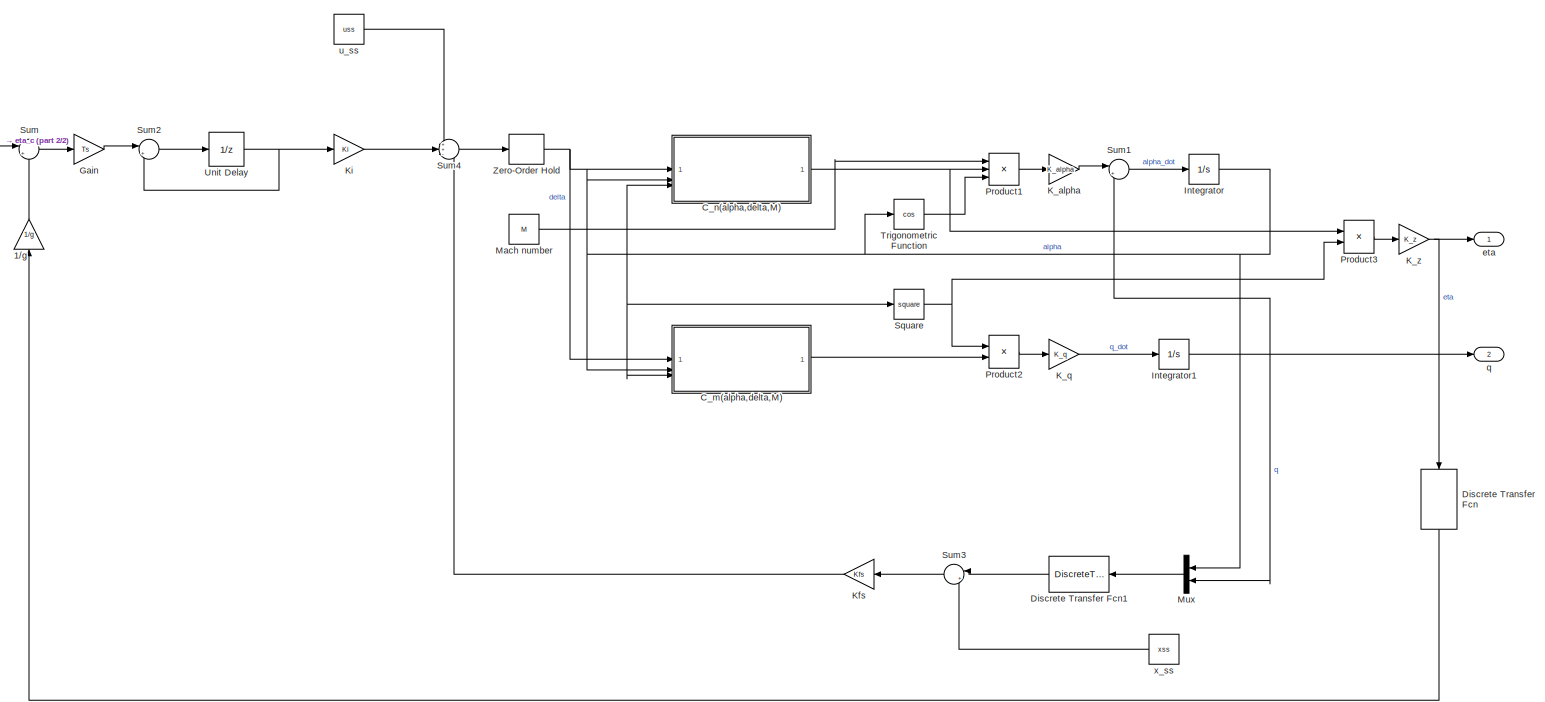
[diagram: root canvas - part 1/2, most of the canvas]
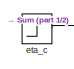
[diagram: root canvas - part 2/2, top left region]
MODEL slx_7d6e27bf7fac
KIND model
CONFIG AbsTol = auto
CONFIG EnableMultiTasking = off
CONFIG FixedStep = STEP_SIZE
CONFIG MaxStep = auto
CONFIG MinStep = auto
CONFIG RelTol = 1e-3
CONFIG SampleTimeConstraint = Unconstrained
CONFIG SolverName = ode4
CONFIG StartTime = 0.0
CONFIG StopTime = SIM_TIME
BLOCK [Gain] 1//g
  Gain = 1/g
  NameLocation = right
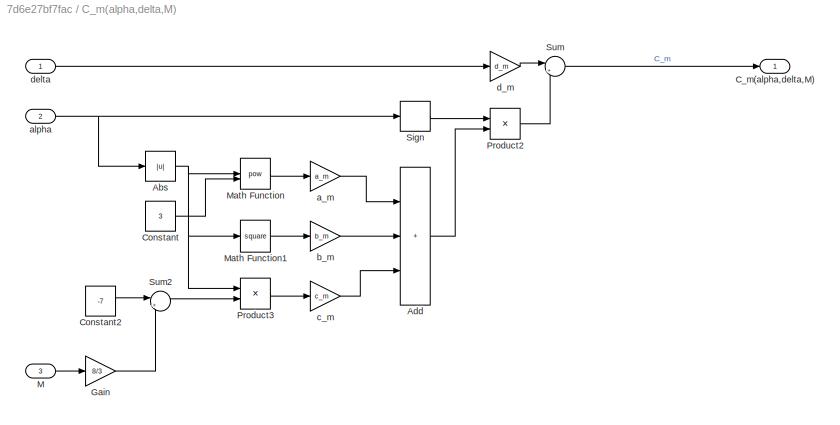
BLOCK [SubSystem] C_m(alpha,delta,M)
BLOCK [Abs] C_m(alpha,delta,M)/Abs
  SaturateOnIntegerOverflow = off
BLOCK [Sum] C_m(alpha,delta,M)/Add
  IconShape = rectangular
  Inputs = +++
BLOCK [Outport] C_m(alpha,delta,M)/C_m(alpha,delta,M)
BLOCK [Constant] C_m(alpha,delta,M)/Constant
  Value = 3
BLOCK [Constant] C_m(alpha,delta,M)/Constant2
  Value = -7
BLOCK [Gain] C_m(alpha,delta,M)/Gain
  Gain = 8/3
BLOCK [Inport] C_m(alpha,delta,M)/M
  Port = 3
BLOCK [Math] C_m(alpha,delta,M)/Math Function
  Operator = pow
BLOCK [Math] C_m(alpha,delta,M)/Math Function1
  Operator = square
BLOCK [Product] C_m(alpha,delta,M)/Product2
BLOCK [Product] C_m(alpha,delta,M)/Product3
BLOCK [Signum] C_m(alpha,delta,M)/Sign
BLOCK [Sum] C_m(alpha,delta,M)/Sum
  Inputs = |++
BLOCK [Sum] C_m(alpha,delta,M)/Sum2
  Inputs = |++
BLOCK [Gain] C_m(alpha,delta,M)/a_m
  Gain = a_m
BLOCK [Inport] C_m(alpha,delta,M)/alpha
  Port = 2
BLOCK [Gain] C_m(alpha,delta,M)/b_m
  Gain = b_m
BLOCK [Gain] C_m(alpha,delta,M)/c_m
  Gain = c_m
BLOCK [Gain] C_m(alpha,delta,M)/d_m
  Gain = d_m
BLOCK [Inport] C_m(alpha,delta,M)/delta
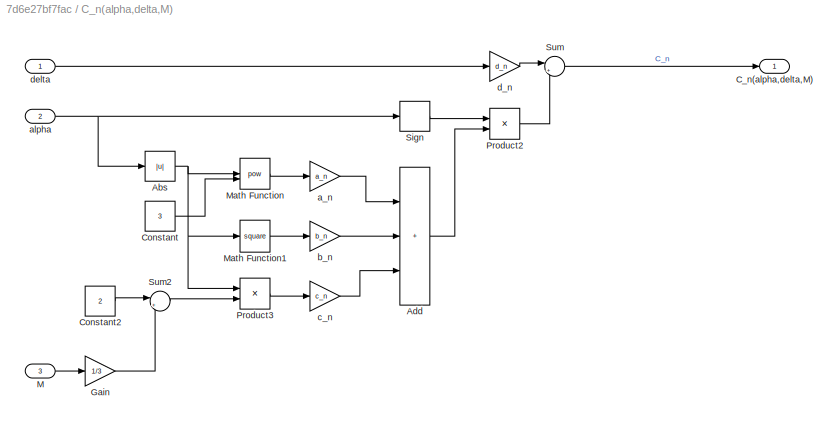
BLOCK [SubSystem] C_n(alpha,delta,M)
BLOCK [Abs] C_n(alpha,delta,M)/Abs
  SaturateOnIntegerOverflow = off
BLOCK [Sum] C_n(alpha,delta,M)/Add
  IconShape = rectangular
  Inputs = +++
BLOCK [Outport] C_n(alpha,delta,M)/C_n(alpha,delta,M)
BLOCK [Constant] C_n(alpha,delta,M)/Constant
  Value = 3
BLOCK [Constant] C_n(alpha,delta,M)/Constant2
  Value = 2
BLOCK [Gain] C_n(alpha,delta,M)/Gain
  Gain = 1/3
BLOCK [Inport] C_n(alpha,delta,M)/M
  Port = 3
BLOCK [Math] C_n(alpha,delta,M)/Math Function
  Operator = pow
BLOCK [Math] C_n(alpha,delta,M)/Math Function1
  Operator = square
BLOCK [Product] C_n(alpha,delta,M)/Product2
BLOCK [Product] C_n(alpha,delta,M)/Product3
BLOCK [Signum] C_n(alpha,delta,M)/Sign
BLOCK [Sum] C_n(alpha,delta,M)/Sum
  Inputs = |++
BLOCK [Sum] C_n(alpha,delta,M)/Sum2
  Inputs = |+-
BLOCK [Gain] C_n(alpha,delta,M)/a_n
  Gain = a_n
BLOCK [Inport] C_n(alpha,delta,M)/alpha
  Port = 2
BLOCK [Gain] C_n(alpha,delta,M)/b_n
  Gain = b_n
BLOCK [Gain] C_n(alpha,delta,M)/c_n
  Gain = c_n
BLOCK [Gain] C_n(alpha,delta,M)/d_n
  Gain = d_n
BLOCK [Inport] C_n(alpha,delta,M)/delta
BLOCK [DiscreteTransferFcn] Discrete Transfer Fcn
  Denominator = [1]
  InputPortMap = u0
  NameLocation = left
  SampleTime = Ts
BLOCK [DiscreteTransferFcn] Discrete Transfer Fcn1
  Denominator = [1]
  InputPortMap = u0
  NameLocation = top
  SampleTime = Ts
BLOCK [Gain] Gain
  Gain = Ts
BLOCK [Integrator] Integrator
  InitialCondition = x0(1)
  Priority = 1
BLOCK [Integrator] Integrator1
  InitialCondition = x0(2)
  Priority = 2
BLOCK [Gain] K_alpha
  Gain = K_alpha
BLOCK [Gain] K_q
  Gain = K_q
BLOCK [Gain] K_z
  Gain = K_z
BLOCK [Gain] Kfs
  Gain = Kfs
  Multiplication = Matrix(K*u) (u vector)
BLOCK [Gain] Ki
  Gain = Ki
BLOCK [Constant] Mach number
  Value = M
BLOCK [Mux] Mux
  DisplayOption = bar
  Inputs = 2
BLOCK [Product] Product1
  Inputs = 3
BLOCK [Product] Product2
BLOCK [Product] Product3
BLOCK [Math] Square
  Operator = square
BLOCK [Sum] Sum
  Inputs = |+-
BLOCK [Sum] Sum1
  Inputs = |++
BLOCK [Sum] Sum2
  Inputs = |++
BLOCK [Sum] Sum3
  Inputs = |+-
BLOCK [Sum] Sum4
  Inputs = ++-
BLOCK [Trigonometry] Trigonometric Function
  Operator = cos
BLOCK [UnitDelay] Unit Delay
  HasFrameUpgradeWarning = on
  SampleTime = Ts
BLOCK [ZeroOrderHold] Zero-Order Hold
  SampleTime = Ts
BLOCK [Outport] eta
BLOCK [Step] eta_c
  After = yss(1)/g + StepAmplitude
  Before = yss(1)/g
  SampleTime = Ts
  Time = 10
BLOCK [Outport] q
  Port = 2
BLOCK [Constant] u_ss
  Value = uss
BLOCK [Constant] x_ss
  Value = xss
LINE 1//g:1 -> Sum:2
NET C_m(alpha,delta,M)/Abs:1 -> C_m(alpha,delta,M)/Math Function1:1, C_m(alpha,delta,M)/Math Function:1, C_m(alpha,delta,M)/Product3:1
LINE C_m(alpha,delta,M)/Add:1 -> C_m(alpha,delta,M)/Product2:2
LINE C_m(alpha,delta,M)/Constant2:1 -> C_m(alpha,delta,M)/Sum2:1
LINE C_m(alpha,delta,M)/Constant:1 -> C_m(alpha,delta,M)/Math Function:2
LINE C_m(alpha,delta,M)/Gain:1 -> C_m(alpha,delta,M)/Sum2:2
LINE C_m(alpha,delta,M)/M:1 -> C_m(alpha,delta,M)/Gain:1
LINE C_m(alpha,delta,M)/Math Function1:1 -> C_m(alpha,delta,M)/b_m:1
LINE C_m(alpha,delta,M)/Math Function:1 -> C_m(alpha,delta,M)/a_m:1
LINE C_m(alpha,delta,M)/Product2:1 -> C_m(alpha,delta,M)/Sum:2
LINE C_m(alpha,delta,M)/Product3:1 -> C_m(alpha,delta,M)/c_m:1
LINE C_m(alpha,delta,M)/Sign:1 -> C_m(alpha,delta,M)/Product2:1
LINE C_m(alpha,delta,M)/Sum2:1 -> C_m(alpha,delta,M)/Product3:2
LINE C_m(alpha,delta,M)/Sum:1 -> C_m(alpha,delta,M)/C_m(alpha,delta,M):1
LINE C_m(alpha,delta,M)/a_m:1 -> C_m(alpha,delta,M)/Add:1
NET C_m(alpha,delta,M)/alpha:1 -> C_m(alpha,delta,M)/Abs:1, C_m(alpha,delta,M)/Sign:1
LINE C_m(alpha,delta,M)/b_m:1 -> C_m(alpha,delta,M)/Add:2
LINE C_m(alpha,delta,M)/c_m:1 -> C_m(alpha,delta,M)/Add:3
LINE C_m(alpha,delta,M)/d_m:1 -> C_m(alpha,delta,M)/Sum:1
LINE C_m(alpha,delta,M)/delta:1 -> C_m(alpha,delta,M)/d_m:1
LINE C_m(alpha,delta,M):1 -> Product2:2
NET C_n(alpha,delta,M)/Abs:1 -> C_n(alpha,delta,M)/Math Function1:1, C_n(alpha,delta,M)/Math Function:1, C_n(alpha,delta,M)/Product3:1
LINE C_n(alpha,delta,M)/Add:1 -> C_n(alpha,delta,M)/Product2:2
LINE C_n(alpha,delta,M)/Constant2:1 -> C_n(alpha,delta,M)/Sum2:1
LINE C_n(alpha,delta,M)/Constant:1 -> C_n(alpha,delta,M)/Math Function:2
LINE C_n(alpha,delta,M)/Gain:1 -> C_n(alpha,delta,M)/Sum2:2
LINE C_n(alpha,delta,M)/M:1 -> C_n(alpha,delta,M)/Gain:1
LINE C_n(alpha,delta,M)/Math Function1:1 -> C_n(alpha,delta,M)/b_n:1
LINE C_n(alpha,delta,M)/Math Function:1 -> C_n(alpha,delta,M)/a_n:1
LINE C_n(alpha,delta,M)/Product2:1 -> C_n(alpha,delta,M)/Sum:2
LINE C_n(alpha,delta,M)/Product3:1 -> C_n(alpha,delta,M)/c_n:1
LINE C_n(alpha,delta,M)/Sign:1 -> C_n(alpha,delta,M)/Product2:1
LINE C_n(alpha,delta,M)/Sum2:1 -> C_n(alpha,delta,M)/Product3:2
LINE C_n(alpha,delta,M)/Sum:1 -> C_n(alpha,delta,M)/C_n(alpha,delta,M):1
LINE C_n(alpha,delta,M)/a_n:1 -> C_n(alpha,delta,M)/Add:1
NET C_n(alpha,delta,M)/alpha:1 -> C_n(alpha,delta,M)/Abs:1, C_n(alpha,delta,M)/Sign:1
LINE C_n(alpha,delta,M)/b_n:1 -> C_n(alpha,delta,M)/Add:2
LINE C_n(alpha,delta,M)/c_n:1 -> C_n(alpha,delta,M)/Add:3
LINE C_n(alpha,delta,M)/d_n:1 -> C_n(alpha,delta,M)/Sum:1
LINE C_n(alpha,delta,M)/delta:1 -> C_n(alpha,delta,M)/d_n:1
NET C_n(alpha,delta,M):1 -> Product1:2, Product3:1
LINE Discrete Transfer Fcn1:1 -> Sum3:1
LINE Discrete Transfer Fcn:1 -> 1//g:1
LINE Gain:1 -> Sum2:1
NET Integrator1:1 -> Mux:2, Sum1:2, q:1
NET Integrator:1 -> C_m(alpha,delta,M):2, C_n(alpha,delta,M):2, Mux:1, Trigonometric Function:1
LINE K_alpha:1 -> Sum1:1
LINE K_q:1 -> Integrator1:1
NET K_z:1 -> Discrete Transfer Fcn:1, eta:1
LINE Kfs:1 -> Sum4:3
LINE Ki:1 -> Sum4:2
NET Mach number:1 -> C_m(alpha,delta,M):3, C_n(alpha,delta,M):3, Product1:1, Square:1
LINE Mux:1 -> Discrete Transfer Fcn1:1
LINE Product1:1 -> K_alpha:1
LINE Product2:1 -> K_q:1
LINE Product3:1 -> K_z:1
NET Square:1 -> Product2:1, Product3:2
LINE Sum1:1 -> Integrator:1
LINE Sum2:1 -> Unit Delay:1
LINE Sum3:1 -> Kfs:1
LINE Sum4:1 -> Zero-Order Hold:1
LINE Sum:1 -> Gain:1
LINE Trigonometric Function:1 -> Product1:3
NET Unit Delay:1 -> Ki:1, Sum2:2
NET Zero-Order Hold:1 -> C_m(alpha,delta,M):1, C_n(alpha,delta,M):1
LINE eta_c:1 -> Sum:1
LINE u_ss:1 -> Sum4:1
LINE x_ss:1 -> Sum3:2
note: NET lines group one-source signal fan-out (src -> all destinations, sorted); 1:1 wires keep LINE
